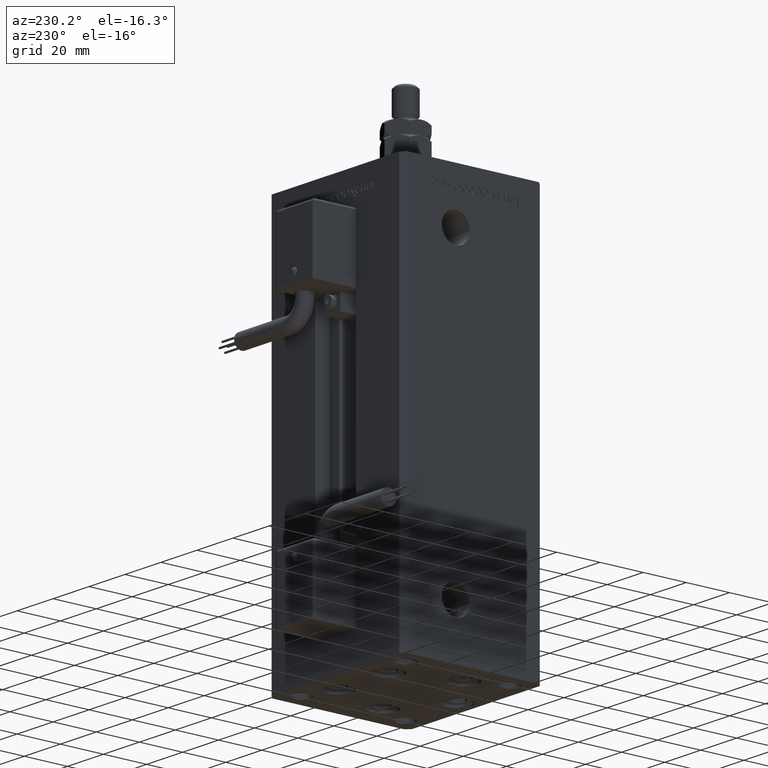
[diagram: clean part render]
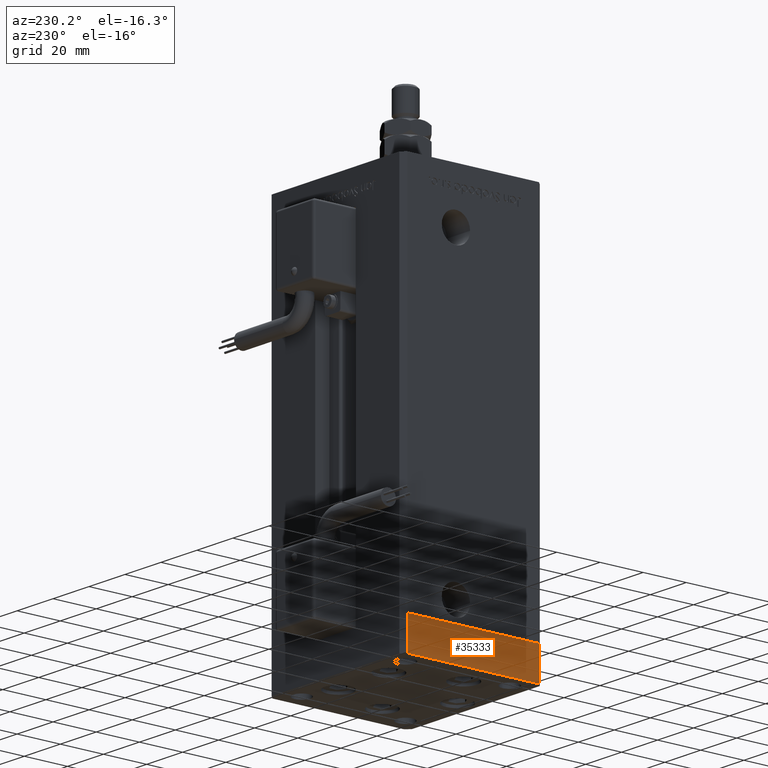
[diagram: same view with one face highlighted and labeled with its STEP entity id]
A machine part, auxiliary view. The second image highlights one B-rep face of the part: STEP entity #35333.
In plain terms, the highlighted planar face has unit normal (-1, 0, 0).
Its self-contained STEP definition (entity closure, byte-faithful):
#774 = VERTEX_POINT ( 'NONE', #56090 ) ;
#1530 = CARTESIAN_POINT ( 'NONE',  ( 37.50000000000001421, -30.50000000000000711, 0.000000000000000000 ) ) ;
#1838 = CARTESIAN_POINT ( 'NONE',  ( 37.49999999999992184, 30.50000000000001066, 0.000000000000000000 ) ) ;
#6238 = EDGE_CURVE ( 'NONE', #774, #28642, #39753, .T. ) ;
#6705 = LINE ( 'NONE', #21327, #12520 ) ;
#8481 = CARTESIAN_POINT ( 'NONE',  ( 37.50000000000001421, -30.50000000000000711, -15.00000000000000000 ) ) ;
#9911 = DIRECTION ( 'NONE',  ( 0.000000000000000000, 0.000000000000000000, 1.000000000000000000 ) ) ;
#10190 = CARTESIAN_POINT ( 'NONE',  ( 37.49999999999992184, 30.50000000000001066, -15.00000000000000000 ) ) ;
#12451 = ORIENTED_EDGE ( 'NONE', *, *, #6238, .F. ) ;
#12520 = VECTOR ( 'NONE', #43156, 1000.000000000000000 ) ;
#12604 = DIRECTION ( 'NONE',  ( 1.000000000000000000, 1.478780668045803018E-15, -0.000000000000000000 ) ) ;
#13158 = EDGE_CURVE ( 'NONE', #25513, #14709, #6705, .T. ) ;
#14709 = VERTEX_POINT ( 'NONE', #1838 ) ;
#17224 = CARTESIAN_POINT ( 'NONE',  ( 37.50000000000001421, -30.50000000000000711, 0.000000000000000000 ) ) ;
#21327 = CARTESIAN_POINT ( 'NONE',  ( 37.49999999999992184, 30.50000000000001066, -15.00000000000000000 ) ) ;
#24640 = LINE ( 'NONE', #8481, #31487 ) ;
#25513 = VERTEX_POINT ( 'NONE', #10190 ) ;
#25882 = EDGE_CURVE ( 'NONE', #28642, #14709, #36786, .T. ) ;
#26274 = DIRECTION ( 'NONE',  ( -1.478780668045802821E-15, 1.000000000000000000, 0.000000000000000000 ) ) ;
#28642 = VERTEX_POINT ( 'NONE', #17224 ) ;
#28746 = DIRECTION ( 'NONE',  ( -1.478780668045802821E-15, 1.000000000000000000, 0.000000000000000000 ) ) ;
#29126 = ORIENTED_EDGE ( 'NONE', *, *, #13158, .T. ) ;
#31170 = CARTESIAN_POINT ( 'NONE',  ( 37.50000000000001421, -30.50000000000000711, -15.00000000000000000 ) ) ;
#31487 = VECTOR ( 'NONE', #26274, 1000.000000000000000 ) ;
#34143 = PLANE ( 'NONE',  #41257 ) ;
#34421 = FACE_OUTER_BOUND ( 'NONE', #41075, .T. ) ;
#35333 = ADVANCED_FACE ( 'NONE', ( #34421 ), #34143, .T. ) ;
#36139 = VECTOR ( 'NONE', #9911, 1000.000000000000000 ) ;
#36786 = LINE ( 'NONE', #1530, #41998 ) ;
#39256 = ORIENTED_EDGE ( 'NONE', *, *, #25882, .F. ) ;
#39753 = LINE ( 'NONE', #31170, #36139 ) ;
#41075 = EDGE_LOOP ( 'NONE', ( #39256, #12451, #54698, #29126 ) ) ;
#41257 = AXIS2_PLACEMENT_3D ( 'NONE', #43031, #12604, #51928 ) ;
#41998 = VECTOR ( 'NONE', #28746, 1000.000000000000000 ) ;
#43031 = CARTESIAN_POINT ( 'NONE',  ( 37.50000000000001421, -30.50000000000000711, -15.00000000000000000 ) ) ;
#43156 = DIRECTION ( 'NONE',  ( 0.000000000000000000, 0.000000000000000000, 1.000000000000000000 ) ) ;
#44084 = EDGE_CURVE ( 'NONE', #774, #25513, #24640, .T. ) ;
#51928 = DIRECTION ( 'NONE',  ( -1.478780668045803018E-15, 1.000000000000000000, 0.000000000000000000 ) ) ;
#54698 = ORIENTED_EDGE ( 'NONE', *, *, #44084, .T. ) ;
#56090 = CARTESIAN_POINT ( 'NONE',  ( 37.50000000000001421, -30.50000000000000711, -15.00000000000000000 ) ) ;